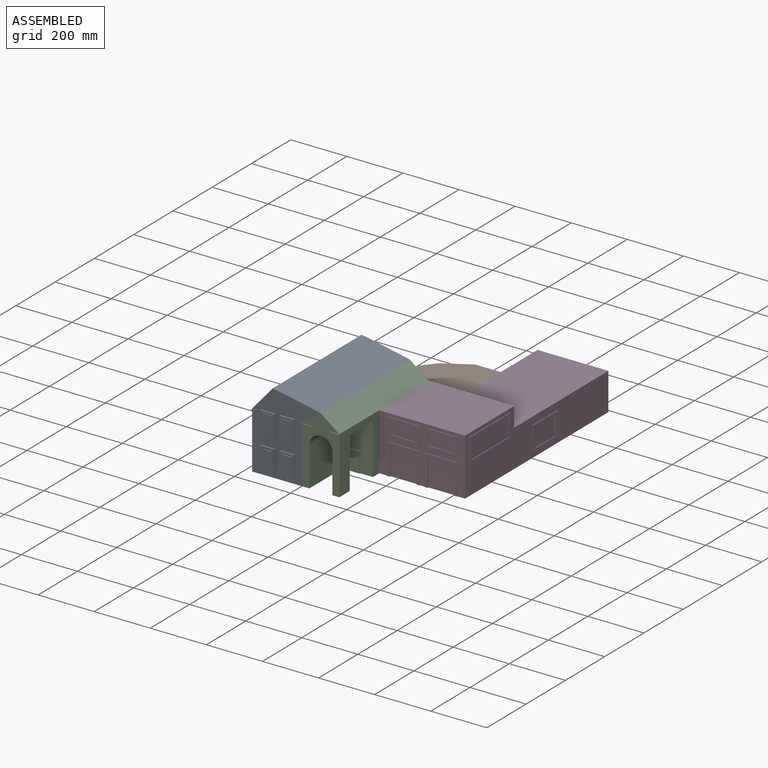
[diagram: assembled view]
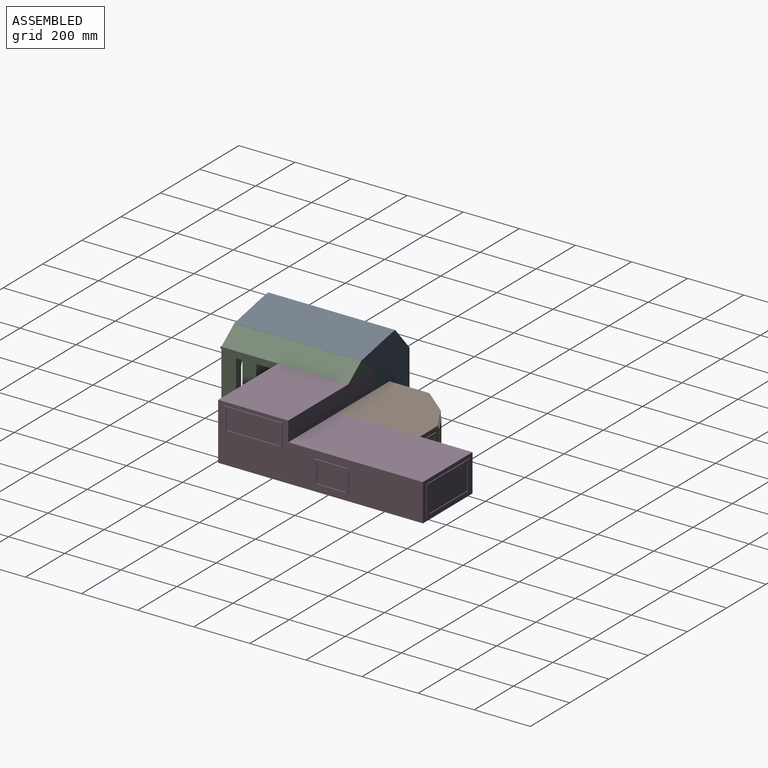
[diagram: assembled view, second angle]
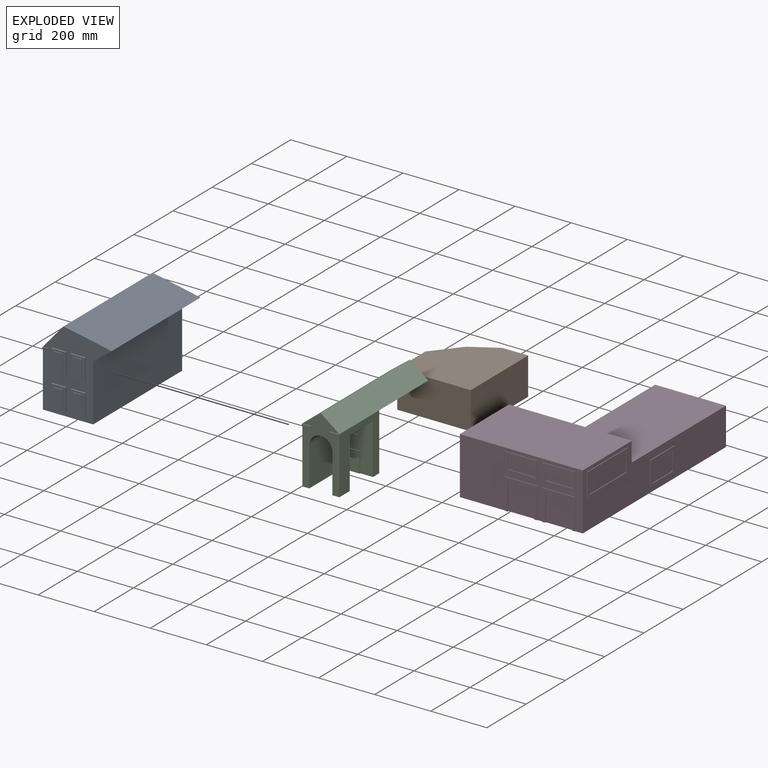
[diagram: exploded view]
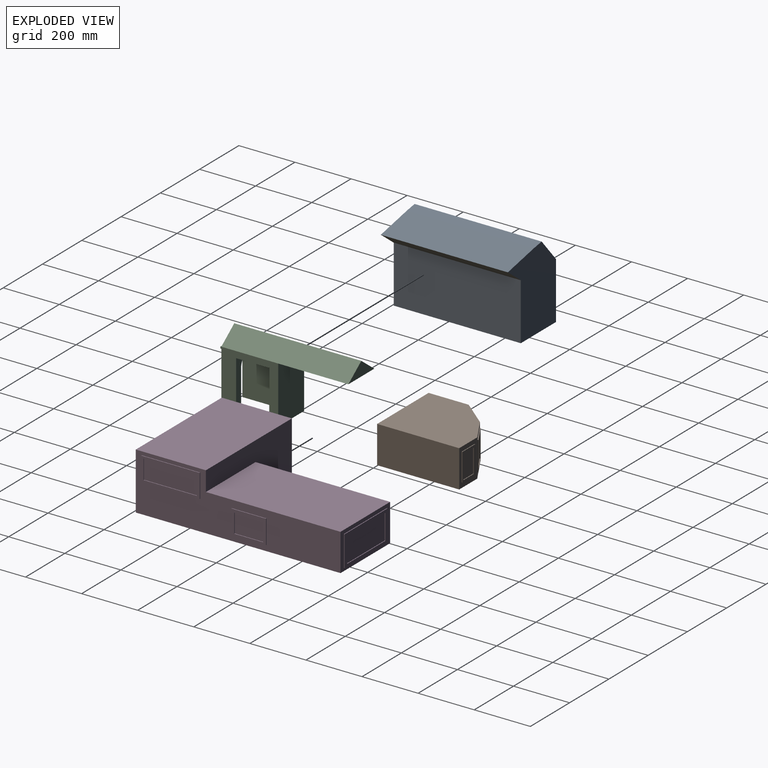
[diagram: exploded view, second angle]
ASSEMBLY  parts=4 mates=3
PART A: 83 faces, bbox 247.4x460.5x287.2 mm
  f0: plane 80.01x52mm, normal (0,-1,0), area 2048.6mm2, adj f23,f24,f25,f26,f77,f78,f79,f80
  f1: plane 80.01x52mm, normal (0,-1,0), area 2048.6mm2, adj f19,f20,f21,f22,f72,f73,f74,f75
  f2: plane 78x52mm, normal (0,-1,0), area 1944mm2, adj f15,f16,f17,f18,f67,f68,f69,f70
  f3: plane 78x52mm, normal (0,-1,0), area 1944mm2, adj f11,f12,f13,f14,f62,f63,f64,f65
  f4: plane 287.16x244.91mm, normal (0,-1,0), area 32858.2mm2, adj f5,f6,f7,f8,f9,f10,f11,f12
  f5: plane 453x179mm, normal (0,0,-1), area 81087mm2, adj f4,f6,f9,f31
  f6: plane 453x203mm, normal (1,0,0), area 91959mm2, adj f4,f5,f7,f31
  f7: plane 453x65.91mm, normal (0.61,0,-0.79), area 37620.7mm2, adj f4,f6,f8,f31
  f8: plane 453x131.86mm, normal (0.2,0,0.98), area 60966mm2, adj f4,f7,f31,f82
  f9: plane 456.2x203mm, normal (-1,0,0), area 66696.4mm2, adj f4,f5,f10,f27,f28,f30,f31,f32
  f10: plane 453x84.16mm, normal (-0.76,0,0.65), area 50423mm2, adj f4,f9,f31,f82
  f11: plane 78x5mm, normal (-1,0,0), area 390mm2, adj f3,f4,f12,f14
  f12: plane 52x5mm, normal (0,0,-1), area 260mm2, adj f3,f4,f11,f13
  f13: plane 78x5mm, normal (1,0,0), area 390mm2, adj f3,f4,f12,f14
  f14: plane 52x5mm, normal (0,0,1), area 260mm2, adj f3,f4,f11,f13
  f15: plane 78x5mm, normal (-1,0,0), area 390mm2, adj f2,f4,f16,f18
  f16: plane 52x5mm, normal (0,0,-1), area 260mm2, adj f2,f4,f15,f17
  f17: plane 78x5mm, normal (1,0,0), area 390mm2, adj f2,f4,f16,f18
  f18: plane 52x5mm, normal (0,0,1), area 260mm2, adj f2,f4,f15,f17
  f19: plane 52x5mm, normal (0,0,-1), area 260mm2, adj f1,f4,f20,f22
  f20: plane 80.01x5mm, normal (1,0,0), area 400.1mm2, adj f1,f4,f19,f21
  f21: plane 52x5mm, normal (0,0,1), area 260mm2, adj f1,f4,f20,f22
  f22: plane 80.01x5mm, normal (-1,0,0), area 400.1mm2, adj f1,f4,f19,f21
  f23: plane 52x5mm, normal (0,0,-1), area 260mm2, adj f0,f4,f24,f26
  f24: plane 80.01x5mm, normal (1,0,0), area 400.1mm2, adj f0,f4,f23,f25
  f25: plane 52x5mm, normal (0,0,1), area 260mm2, adj f0,f4,f24,f26
  f26: plane 80.01x5mm, normal (-1,0,0), area 400.1mm2, adj f0,f4,f23,f25
  f27: plane 19x3.2mm, normal (0,0,1), area 60.8mm2, adj f4,f9,f29,f30
  f28: plane 19x3.2mm, normal (0,0,-1), area 60.8mm2, adj f4,f9,f29,f30
  f29: plane 7x3.2mm, normal (1,0,0), area 22.4mm2, adj f4,f27,f28,f30
  f30: plane 19x7mm, normal (0,-1,0), area 133mm2, adj f9,f27,f28,f29
  f31: plane 287.16x244.91mm, normal (0,1,0), area 49424.3mm2, adj f5,f6,f7,f8,f9,f10,f82
  f32: plane 93x2.5mm, normal (0,0,1), area 232.5mm2, adj f9,f33,f39,f40
  f33: plane 135x2.5mm, normal (0,1,0), area 337.5mm2, adj f9,f32,f34,f40
  f34: plane 93x2.5mm, normal (0,0,-1), area 232.5mm2, adj f9,f33,f39,f40
  f35: plane 112.23x2.5mm, normal (0,-1,0), area 280.6mm2, adj f36,f38,f40,f41
  f36: plane 73.62x2.5mm, normal (0,0,-1), area 184.1mm2, adj f35,f37,f40,f41
  f37: plane 112.23x2.5mm, normal (0,1,0), area 280.6mm2, adj f36,f38,f40,f41
  f38: plane 73.62x2.5mm, normal (0,0,1), area 184.1mm2, adj f35,f37,f40,f41
  f39: plane 135x2.5mm, normal (0,-1,0), area 337.5mm2, adj f9,f32,f34,f40
  f40: plane 135x93mm, normal (-1,0,0), area 4292.2mm2, adj f32,f33,f34,f35,f36,f37,f38,f39
  f41: plane 112.23x73.62mm, normal (-1,0,0), area 8262.8mm2, adj f35,f36,f37,f38
  f42: plane 95x2.5mm, normal (0,0,1), area 237.5mm2, adj f9,f43,f49,f50
  f43: plane 67x2.5mm, normal (0,1,0), area 167.5mm2, adj f9,f42,f44,f50
  f44: plane 95x2.5mm, normal (0,0,-1), area 237.5mm2, adj f9,f43,f49,f50
  f45: plane 54x2.5mm, normal (0,-1,0), area 135mm2, adj f46,f48,f50,f51
  f46: plane 78x2.5mm, normal (0,0,-1), area 195mm2, adj f45,f47,f50,f51
  f47: plane 54x2.5mm, normal (0,1,0), area 135mm2, adj f46,f48,f50,f51
  f48: plane 78x2.5mm, normal (0,0,1), area 195mm2, adj f45,f47,f50,f51
  f49: plane 67x2.5mm, normal (0,-1,0), area 167.5mm2, adj f9,f42,f44,f50
  f50: plane 95x67mm, normal (-1,0,0), area 2153mm2, adj f42,f43,f44,f45,f46,f47,f48,f49
  f51: plane 78x54mm, normal (-1,0,0), area 4212mm2, adj f45,f46,f47,f48
  f52: plane 95x2.5mm, normal (0,0,-1), area 237.5mm2, adj f9,f53,f59,f60
  f53: plane 67x2.5mm, normal (0,-1,0), area 167.5mm2, adj f9,f52,f54,f60
  f54: plane 95x2.5mm, normal (0,0,1), area 237.5mm2, adj f9,f53,f59,f60
  f55: plane 54x2.5mm, normal (0,-1,0), area 135mm2, adj f56,f58,f60,f61
  f56: plane 78x2.5mm, normal (0,0,-1), area 195mm2, adj f55,f57,f60,f61
  f57: plane 54x2.5mm, normal (0,1,0), area 135mm2, adj f56,f58,f60,f61
  f58: plane 78x2.5mm, normal (0,0,1), area 195mm2, adj f55,f57,f60,f61
  f59: plane 67x2.5mm, normal (0,1,0), area 167.5mm2, adj f9,f52,f54,f60
  f60: plane 95x67mm, normal (-1,0,0), area 2153mm2, adj f52,f53,f54,f55,f56,f57,f58,f59
  f61: plane 78x54mm, normal (-1,0,0), area 4212mm2, adj f55,f56,f57,f58
  f62: plane 33x2.5mm, normal (0,0,1), area 82.5mm2, adj f3,f63,f65,f66
  f63: plane 64x2.5mm, normal (-1,0,0), area 160mm2, adj f3,f62,f64,f66
  f64: plane 33x2.5mm, normal (0,0,-1), area 82.5mm2, adj f3,f63,f65,f66
  f65: plane 64x2.5mm, normal (1,0,0), area 160mm2, adj f3,f62,f64,f66
  f66: plane 64x33mm, normal (0,-1,0), area 2112mm2, adj f62,f63,f64,f65
  f67: plane 33x2.5mm, normal (0,0,1), area 82.5mm2, adj f2,f68,f70,f71
  f68: plane 64x2.5mm, normal (-1,0,0), area 160mm2, adj f2,f67,f69,f71
  f69: plane 33x2.5mm, normal (0,0,-1), area 82.5mm2, adj f2,f68,f70,f71
  f70: plane 64x2.5mm, normal (1,0,0), area 160mm2, adj f2,f67,f69,f71
  f71: plane 64x33mm, normal (0,-1,0), area 2112mm2, adj f67,f68,f69,f70
  f72: plane 33x2.5mm, normal (0,0,1), area 82.5mm2, adj f1,f73,f75,f76
  f73: plane 64x2.5mm, normal (-1,0,0), area 160mm2, adj f1,f72,f74,f76
  f74: plane 33x2.5mm, normal (0,0,-1), area 82.5mm2, adj f1,f73,f75,f76
  f75: plane 64x2.5mm, normal (1,0,0), area 160mm2, adj f1,f72,f74,f76
  f76: plane 64x33mm, normal (0,-1,0), area 2112mm2, adj f72,f73,f74,f75
  f77: plane 64x2.5mm, normal (-1,0,0), area 160mm2, adj f0,f78,f80,f81
  f78: plane 33x2.5mm, normal (0,0,-1), area 82.5mm2, adj f0,f77,f79,f81
  f79: plane 64x2.5mm, normal (1,0,0), area 160mm2, adj f0,f78,f80,f81
  f80: plane 33x2.5mm, normal (0,0,1), area 82.5mm2, adj f0,f77,f79,f81
  f81: plane 64x33mm, normal (0,-1,0), area 2112mm2, adj f77,f78,f79,f80
  f82: plane 453x40.2mm, normal (0.16,0,0.99), area 18463.1mm2, adj f4,f8,f10,f31
PART B: 48 faces, bbox 264.6x133x295.1 mm
  f0: plane 133x91.88mm, normal (0,0,-1), area 5763.3mm2, adj f1,f5,f6,f7,f41,f42,f43,f44
  f1: plane 133x91.69mm, normal (0.51,0,-0.86), area 5311.8mm2, adj f0,f2,f5,f7,f31,f32,f33,f34
  f2: plane 133x95.33mm, normal (0.77,0,-0.64), area 7066.8mm2, adj f1,f3,f5,f7,f21,f22,f23,f24
  f3: plane 142.77x133mm, normal (1,0,0), area 7222mm2, adj f2,f4,f5,f7,f11,f12,f13,f14
  f4: plane 262.06x133mm, normal (0,0,1), area 34853.3mm2, adj f3,f5,f6,f7
  f5: plane 292.62x262.06mm, normal (0,-1,0), area 66162.5mm2, adj f0,f1,f2,f3,f4,f6
  f6: plane 292.62x133mm, normal (-1,0,0), area 38918.2mm2, adj f0,f4,f5,f7
  f7: plane 292.62x262.06mm, normal (0,1,0), area 66162.5mm2, adj f0,f1,f2,f3,f4,f6
  f8: plane 87x2.5mm, normal (0,0,-1), area 217.5mm2, adj f9,f15,f16,f17
  f9: plane 87x2.5mm, normal (0,-1,0), area 217.5mm2, adj f8,f10,f16,f17
  f10: plane 87x2.5mm, normal (0,0,1), area 217.5mm2, adj f9,f15,f16,f17
  f11: plane 111x2.5mm, normal (0,1,0), area 277.5mm2, adj f3,f12,f14,f16
  f12: plane 106x2.5mm, normal (0,0,1), area 265mm2, adj f3,f11,f13,f16
  f13: plane 111x2.5mm, normal (0,-1,0), area 277.5mm2, adj f3,f12,f14,f16
  f14: plane 106x2.5mm, normal (0,0,-1), area 265mm2, adj f3,f11,f13,f16
  f15: plane 87x2.5mm, normal (0,1,0), area 217.5mm2, adj f8,f10,f16,f17
  f16: plane 111x106mm, normal (1,0,0), area 4197mm2, adj f8,f9,f10,f11,f12,f13,f14,f15
  f17: plane 87x87mm, normal (1,0,0), area 7569mm2, adj f8,f9,f10,f15
  f18: plane 60.26x50.24mm, normal (0,1,0), area 190mm2, adj f19,f25,f26,f27
  f19: plane 82x1.93mm, normal (-0.64,0,-0.77), area 205mm2, adj f18,f20,f26,f27
  f20: plane 60.26x50.24mm, normal (0,-1,0), area 190mm2, adj f19,f25,f26,f27
  f21: plane 69.99x58.24mm, normal (0,1,0), area 221.5mm2, adj f2,f22,f24,f26
  f22: plane 105.61x1.93mm, normal (0.64,0,0.77), area 264mm2, adj f2,f21,f23,f26
  f23: plane 69.99x58.24mm, normal (0,-1,0), area 221.5mm2, adj f2,f22,f24,f26
  f24: plane 105.61x1.93mm, normal (-0.64,0,-0.77), area 264mm2, adj f2,f21,f23,f26
  f25: plane 82x1.93mm, normal (0.64,0,0.77), area 205mm2, adj f18,f20,f26,f27
  f26: plane 105.61x68.4mm, normal (0.77,0,-0.64), area 3124.5mm2, adj f18,f19,f20,f21,f22,f23,f24,f25
  f27: plane 82x58.67mm, normal (0.77,0,-0.64), area 6232mm2, adj f18,f19,f20,f25
  f28: plane 61.36x37.87mm, normal (0,1,0), area 174.7mm2, adj f29,f35,f36,f37
  f29: plane 85.76x2.15mm, normal (-0.86,0,-0.51), area 214.4mm2, adj f28,f30,f36,f37
  f30: plane 61.36x37.87mm, normal (0,-1,0), area 174.7mm2, adj f29,f35,f36,f37
  f31: plane 104.56x2.15mm, normal (0.86,0,0.51), area 261.4mm2, adj f1,f32,f34,f36
  f32: plane 74.24x45.53mm, normal (0,-1,0), area 212.2mm2, adj f1,f31,f33,f36
  f33: plane 104.56x2.15mm, normal (-0.86,0,-0.51), area 261.4mm2, adj f1,f32,f34,f36
  f34: plane 74.24x45.53mm, normal (0,1,0), area 212.2mm2, adj f1,f31,f33,f36
  f35: plane 85.76x2.15mm, normal (0.86,0,0.51), area 214.4mm2, adj f28,f30,f36,f37
  f36: plane 104.56x72.97mm, normal (0.51,0,-0.86), area 2881.5mm2, adj f28,f29,f30,f31,f32,f33,f34,f35
  f37: plane 85.76x60.08mm, normal (0.51,0,-0.86), area 5994.5mm2, adj f28,f29,f30,f35
  f38: plane 52.32x2.5mm, normal (0,1,0), area 130.8mm2, adj f39,f45,f46,f47
  f39: plane 84.75x2.5mm, normal (-1,0,0), area 211.9mm2, adj f38,f40,f46,f47
  f40: plane 52.32x2.5mm, normal (0,-1,0), area 130.8mm2, adj f39,f45,f46,f47
  f41: plane 98.99x2.5mm, normal (1,0,0), area 247.5mm2, adj f0,f42,f44,f46
  f42: plane 65.22x2.5mm, normal (0,-1,0), area 163.1mm2, adj f0,f41,f43,f46
  f43: plane 98.99x2.5mm, normal (-1,0,0), area 247.5mm2, adj f0,f42,f44,f46
  f44: plane 65.22x2.5mm, normal (0,1,0), area 163.1mm2, adj f0,f41,f43,f46
  f45: plane 84.75x2.5mm, normal (1,0,0), area 211.9mm2, adj f38,f40,f46,f47
  f46: plane 98.99x65.22mm, normal (0,0,-1), area 2022.4mm2, adj f38,f39,f40,f41,f42,f43,f44,f45
  f47: plane 84.75x52.32mm, normal (0,0,-1), area 4434mm2, adj f38,f39,f40,f45
PART C: 44 faces, bbox 132.1x456.2x253.3 mm
  f0: plane 180.23x107mm, normal (0,1,0), area 14404.4mm2, adj f1,f8,f21,f23,f24,f25,f26,f37
  f1: plane 180.23x171mm, normal (-1,0,0), area 28644.2mm2, adj f0,f2,f4,f7,f8,f21
  f2: plane 41.05x41.05mm, normal (0,-1,0), area 361.7mm2, adj f1,f7,f21
  f3: plane 180.23x66.05mm, normal (0,-1,0), area 4867.5mm2, adj f5,f6,f7,f12,f21
  f4: plane 253.34x132.11mm, normal (0,1,0), area 15591.6mm2, adj f1,f5,f6,f7,f8,f9,f10,f11
  f5: plane 53x25mm, normal (0,0,-1), area 1325mm2, adj f3,f4,f6,f12
  f6: plane 139.18x53mm, normal (1,0,0), area 7376.6mm2, adj f3,f4,f5,f7
  f7: cylinder r=41.05mm len=82.11mm, axis (0,1,0), area 6835.4mm2, adj f1,f2,f3,f4,f6
  f8: plane 203x132mm, normal (0,0,-1), area 8619.8mm2, adj f0,f1,f4,f9,f22,f23,f24,f25
  f9: plane 206.2x203mm, normal (1,0,0), area 41231.4mm2, adj f4,f8,f10,f17,f18,f20,f22
  f10: plane 453x66.05mm, normal (0.61,0,0.8), area 37620.5mm2, adj f4,f9,f11,f32,f33
  f11: plane 453x66.05mm, normal (-0.61,0,0.8), area 37620.5mm2, adj f4,f10,f12,f32,f33
  f12: plane 206.2x203mm, normal (-1,0,0), area 14196.4mm2, adj f3,f4,f5,f11,f13,f15,f16,f21
  f13: plane 34x3.2mm, normal (0,0,1), area 108.8mm2, adj f4,f12,f14,f16
  f14: plane 7x3.2mm, normal (1,0,0), area 22.4mm2, adj f4,f13,f15,f16
  f15: plane 34x3.2mm, normal (0,0,-1), area 108.8mm2, adj f4,f12,f14,f16
  f16: plane 34x7mm, normal (0,1,0), area 238mm2, adj f12,f13,f14,f15
  f17: plane 34x3.2mm, normal (0,0,1), area 108.8mm2, adj f4,f9,f19,f20
  f18: plane 34x3.2mm, normal (0,0,-1), area 108.8mm2, adj f4,f9,f19,f20
  f19: plane 7x3.2mm, normal (-1,0,0), area 22.4mm2, adj f4,f17,f18,f20
  f20: plane 34x7mm, normal (0,1,0), area 238mm2, adj f9,f17,f18,f19
  f21: plane 150x107.11mm, normal (0,0,-1), area 12641.8mm2, adj f0,f1,f2,f3,f12,f22,f23
  f22: plane 203x132.11mm, normal (0,-1,0), area 26798.4mm2, adj f8,f9,f12,f21,f23,f32
  f23: plane 180.23x32mm, normal (-1,0,0), area 5767.5mm2, adj f0,f8,f21,f22
  f24: plane 72.16x3mm, normal (1,0,0), area 216.5mm2, adj f0,f8,f26,f27
  f25: plane 72.16x3mm, normal (-1,0,0), area 216.5mm2, adj f0,f8,f26,f27
  f26: plane 40.27x3mm, normal (0,0,1), area 120.8mm2, adj f0,f24,f25,f27
  f27: plane 72.16x40.27mm, normal (0,1,0), area 2855.8mm2, adj f8,f24,f25,f26,f28
  f28: cylinder r=4mm len=8mm, axis (0,-1,0), area 50.3mm2, adj f27,f29
  f29: plane 8x8mm, normal (0,1,0), area 30.6mm2, adj f28,f30
  f30: cylinder r=2.5mm len=5mm, axis (0,-1,0), area 47.1mm2, adj f29,f31
  f31: plane 5x5mm, normal (0,1,0), area 19.6mm2, adj f30
  f32: plane 250x132.11mm, normal (0,0,-1), area 33026.3mm2, adj f10,f11,f22,f33
  f33: plane 132.11x50.34mm, normal (0,-1,0), area 3325mm2, adj f10,f11,f32
  f34: plane 23.47x2.5mm, normal (-1,0,0), area 58.7mm2, adj f35,f41,f42,f43
  f35: cylinder r=10.82mm len=21.64mm, axis (0,-1,0), area 88.6mm2, adj f34,f36,f42,f43
  f36: plane 24.92x2.5mm, normal (1,0,0), area 62.3mm2, adj f35,f41,f42,f43
  f37: plane 33.21x2.5mm, normal (1,0,0), area 83mm2, adj f0,f38,f40,f42
  f38: plane 40.27x2.5mm, normal (0,0,-1), area 100.7mm2, adj f0,f37,f39,f42
  f39: plane 33.21x2.5mm, normal (-1,0,0), area 83mm2, adj f0,f38,f40,f42
  f40: cylinder r=20.14mm len=40.27mm, axis (0,-1,0), area 158.1mm2, adj f0,f37,f39,f42
  f41: plane 21.54x2.5mm, normal (0,0,1), area 53.9mm2, adj f34,f36,f42,f43
  f42: plane 53.35x40.27mm, normal (0,1,0), area 1253.8mm2, adj f34,f35,f36,f37,f38,f39,f40,f41
  f43: plane 35.73x21.64mm, normal (0,1,0), area 720.7mm2, adj f34,f35,f36,f41
PART D: 84 faces, bbox 440.5x734.5x203 mm
  f0: plane 480x133mm, normal (-1,0,0), area 48480.7mm2, adj f1,f5,f7,f43,f75,f76,f81
  f1: plane 252.71x133mm, normal (0,1,0), area 9739.7mm2, adj f0,f5,f8,f43,f44,f45,f46,f51
  f2: plane 438x203mm, normal (0,-1,0), area 49124mm2, adj f5,f6,f8,f9,f10,f11,f12,f13
  f3: plane 115x110mm, normal (0,-1,0), area 3150mm2, adj f5,f12,f13,f14,f19,f20,f21
  f4: plane 115x110mm, normal (0,-1,0), area 3150mm2, adj f5,f9,f10,f11,f15,f16,f17
  f5: plane 732x438mm, normal (0,0,-1), area 230831.3mm2, adj f0,f1,f2,f3,f4,f7,f8,f9
  f6: plane 438x250mm, normal (0,0,1), area 109500mm2, adj f2,f7,f8,f74
  f7: plane 438x203mm, normal (0,1,0), area 55303.3mm2, adj f0,f5,f6,f8,f43,f74
  f8: plane 730x203mm, normal (1,0,0), area 86428mm2, adj f1,f2,f5,f6,f7,f43,f54,f55
  f9: plane 110x2mm, normal (-1,0,0), area 220mm2, adj f2,f4,f5,f11
  f10: plane 110x2mm, normal (1,0,0), area 220mm2, adj f2,f4,f5,f11
  f11: plane 115x2mm, normal (0,0,1), area 230mm2, adj f2,f4,f9,f10
  f12: plane 115x2mm, normal (0,0,1), area 230mm2, adj f2,f3,f13,f14
  f13: plane 110x2mm, normal (-1,0,0), area 220mm2, adj f2,f3,f5,f12
  f14: plane 110x2mm, normal (1,0,0), area 220mm2, adj f2,f3,f5,f12
  f15: plane 100x4mm, normal (1,0,0), area 400mm2, adj f4,f5,f17,f18
  f16: plane 100x4mm, normal (-1,0,0), area 400mm2, adj f4,f5,f17,f18
  f17: plane 95x4mm, normal (0,0,-1), area 380mm2, adj f4,f15,f16,f18
  f18: plane 100x95mm, normal (0,-1,0), area 9500mm2, adj f5,f15,f16,f17
  f19: plane 100x4mm, normal (1,0,0), area 400mm2, adj f3,f5,f21,f22
  f20: plane 100x4mm, normal (-1,0,0), area 400mm2, adj f3,f5,f21,f22
  f21: plane 95x4mm, normal (0,0,-1), area 380mm2, adj f3,f19,f20,f22
  f22: plane 100x95mm, normal (0,-1,0), area 9500mm2, adj f5,f19,f20,f21
  f23: plane 115x2mm, normal (0,0,1), area 230mm2, adj f2,f24,f30,f31
  f24: plane 63x2mm, normal (-1,0,0), area 126mm2, adj f2,f23,f25,f31
  f25: plane 115x2mm, normal (0,0,-1), area 230mm2, adj f2,f24,f30,f31
  f26: plane 48x2mm, normal (1,0,0), area 96mm2, adj f27,f29,f31,f32
  f27: plane 96x2mm, normal (0,0,-1), area 192mm2, adj f26,f28,f31,f32
  f28: plane 48x2mm, normal (-1,0,0), area 96mm2, adj f27,f29,f31,f32
  f29: plane 96x2mm, normal (0,0,1), area 192mm2, adj f26,f28,f31,f32
  f30: plane 63x2mm, normal (1,0,0), area 126mm2, adj f2,f23,f25,f31
  f31: plane 115x63mm, normal (0,-1,0), area 2637mm2, adj f23,f24,f25,f26,f27,f28,f29,f30
  f32: plane 96x48mm, normal (0,-1,0), area 4608mm2, adj f26,f27,f28,f29
  f33: plane 48x2mm, normal (1,0,0), area 96mm2, adj f34,f40,f41,f42
  f34: plane 96x2mm, normal (0,0,-1), area 192mm2, adj f33,f35,f41,f42
  f35: plane 48x2mm, normal (-1,0,0), area 96mm2, adj f34,f40,f41,f42
  f36: plane 63x2mm, normal (-1,0,0), area 126mm2, adj f2,f37,f39,f41
  f37: plane 115x2mm, normal (0,0,-1), area 230mm2, adj f2,f36,f38,f41
  f38: plane 63x2mm, normal (1,0,0), area 126mm2, adj f2,f37,f39,f41
  f39: plane 115x2mm, normal (0,0,1), area 230mm2, adj f2,f36,f38,f41
  f40: plane 96x2mm, normal (0,0,1), area 192mm2, adj f33,f35,f41,f42
  f41: plane 115x63mm, normal (0,-1,0), area 2637mm2, adj f33,f34,f35,f36,f37,f38,f39,f40
  f42: plane 96x48mm, normal (0,-1,0), area 4608mm2, adj f33,f34,f35,f40
  f43: plane 480x252.71mm, normal (0,0,1), area 121301.9mm2, adj f0,f1,f7,f8
  f44: plane 219x2.5mm, normal (0,0,1), area 547.5mm2, adj f1,f45,f51,f52
  f45: plane 109x2.5mm, normal (1,0,0), area 272.5mm2, adj f1,f44,f46,f52
  f46: plane 219x2.5mm, normal (0,0,-1), area 547.5mm2, adj f1,f45,f51,f52
  f47: plane 89.76x2.5mm, normal (-1,0,0), area 224.4mm2, adj f48,f50,f52,f53
  f48: plane 195x2.5mm, normal (0,0,-1), area 487.5mm2, adj f47,f49,f52,f53
  f49: plane 89.76x2.5mm, normal (1,0,0), area 224.4mm2, adj f48,f50,f52,f53
  f50: plane 195x2.5mm, normal (0,0,1), area 487.5mm2, adj f47,f49,f52,f53
  f51: plane 109x2.5mm, normal (-1,0,0), area 272.5mm2, adj f1,f44,f46,f52
  f52: plane 219x109mm, normal (0,1,0), area 6367.9mm2, adj f44,f45,f46,f47,f48,f49,f50,f51
  f53: plane 195x89.76mm, normal (0,1,0), area 17503.1mm2, adj f47,f48,f49,f50
  f54: plane 208.47x2.5mm, normal (0,0,1), area 521.2mm2, adj f8,f55,f61,f62
  f55: plane 84.55x2.5mm, normal (0,-1,0), area 211.4mm2, adj f8,f54,f56,f62
  f56: plane 208.47x2.5mm, normal (0,0,-1), area 521.2mm2, adj f8,f55,f61,f62
  f57: plane 69x2.5mm, normal (0,1,0), area 172.5mm2, adj f58,f60,f62,f63
  f58: plane 190x2.5mm, normal (0,0,-1), area 475mm2, adj f57,f59,f62,f63
  f59: plane 69x2.5mm, normal (0,-1,0), area 172.5mm2, adj f58,f60,f62,f63
  f60: plane 190x2.5mm, normal (0,0,1), area 475mm2, adj f57,f59,f62,f63
  f61: plane 84.55x2.5mm, normal (0,1,0), area 211.4mm2, adj f8,f54,f56,f62
  f62: plane 208.47x84.55mm, normal (1,0,0), area 4516.3mm2, adj f54,f55,f56,f57,f58,f59,f60,f61
  f63: plane 190x69mm, normal (1,0,0), area 13110mm2, adj f57,f58,f59,f60
  f64: plane 123.32x2.5mm, normal (0,0,1), area 308.3mm2, adj f8,f65,f71,f72
  f65: plane 85.43x2.5mm, normal (0,-1,0), area 213.6mm2, adj f8,f64,f66,f72
  f66: plane 123.32x2.5mm, normal (0,0,-1), area 308.3mm2, adj f8,f65,f71,f72
  f67: plane 68x2.5mm, normal (0,1,0), area 170mm2, adj f68,f70,f72,f73
  f68: plane 103x2.5mm, normal (0,0,-1), area 257.5mm2, adj f67,f69,f72,f73
  f69: plane 68x2.5mm, normal (0,-1,0), area 170mm2, adj f68,f70,f72,f73
  f70: plane 103x2.5mm, normal (0,0,1), area 257.5mm2, adj f67,f69,f72,f73
  f71: plane 85.43x2.5mm, normal (0,1,0), area 213.6mm2, adj f8,f64,f66,f72
  f72: plane 123.32x85.43mm, normal (1,0,0), area 3531.7mm2, adj f64,f65,f66,f67,f68,f69,f70,f71
  f73: plane 103x68mm, normal (1,0,0), area 7004mm2, adj f67,f68,f69,f70
  f74: plane 250x203mm, normal (-1,0,0), area 50750mm2, adj f2,f5,f6,f7
  f75: plane 131.76x2.5mm, normal (0,0,1), area 329.4mm2, adj f0,f76,f81,f82
  f76: plane 116.57x2.5mm, normal (0,1,0), area 291.4mm2, adj f0,f5,f75,f82
  f77: plane 97.97x2.5mm, normal (0,-1,0), area 244.9mm2, adj f78,f80,f82,f83
  f78: plane 102.03x2.5mm, normal (0,0,-1), area 255.1mm2, adj f77,f79,f82,f83
  f79: plane 97.97x2.5mm, normal (0,1,0), area 244.9mm2, adj f78,f80,f82,f83
  f80: plane 102.03x2.5mm, normal (0,0,1), area 255.1mm2, adj f77,f79,f82,f83
  f81: plane 116.57x2.5mm, normal (0,-1,0), area 291.4mm2, adj f0,f5,f75,f82
  f82: plane 131.76x116.57mm, normal (-1,0,0), area 5363.3mm2, adj f5,f75,f76,f77,f78,f79,f80,f81
  f83: plane 102.03x97.97mm, normal (-1,0,0), area 9996mm2, adj f77,f78,f79,f80
PLACE A t=(-242.71,66.74,42.77)mm
PLACE B rot(axis=(0,-0.71,0.71),180deg) t=(-69.45,702.83,-21.29)mm
PLACE C rot(axis=(0,0,1),180deg) t=(-122.64,26.74,33.94)mm
PLACE D t=(-293.18,254.74,35.47)mm
MATE fastened B.f4 <-> D.f7  axis (0,-1,0) through (8.52,479.74,27.21)mm
MATE fastened A.f6 <-> C.f9  axis (1,0,0) through (-176.77,26.74,-39.29)mm
MATE fastened D.f74 <-> A.f6  axis (-1,0,0) through (-176.77,479.74,62.21)mm
